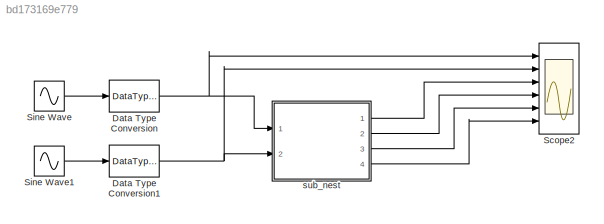
MODEL slx_bd173169e779
KIND model
CONFIG AbsTol = auto
CONFIG FixedStep = auto
CONFIG MaxStep = auto
CONFIG MinStep = auto
CONFIG RelTol = 1e-3
CONFIG SampleTimeConstraint = Unconstrained
CONFIG Solver = FixedStepDiscrete
CONFIG SolverMode = SingleTasking
CONFIG SolverName = FixedStepDiscrete
CONFIG StartTime = 0.0
CONFIG StopTime = 2/10
BLOCK [DataTypeConversion] Data Type Conversion
  OutDataTypeStr = fixdt(1,4,2)
  RndMeth = Floor
  SaturateOnIntegerOverflow = off
BLOCK [DataTypeConversion] Data Type Conversion1
  OutDataTypeStr = fixdt(1,4,2)
  RndMeth = Floor
  SaturateOnIntegerOverflow = off
BLOCK [Scope] Scope2
  NumInputPorts = 6
  Ports = [6]
  ScopeSpecificationString = Simulink.scopes.TimeScopeBlockCfg('CurrentConfiguration', extmgr.ConfigurationSet(extmgr.Configuration('Core','General UI',true),extmgr.Configuration('Core','Source UI',true),extmgr.Configuration('Sources','WiredSimulink',true,'DataLoggingVariableName','ScopeData1','DataLoggingSaveFormat','StructureWithTime','DataLoggingDecimation','1','DataLoggingDecimateData',true),extmgr.Configuration('Visuals'...<+6515ch>
BLOCK [Sin] Sine Wave
  Amplitude = 4
  Frequency = 2*pi*10
  Ports = [0, 1]
  SampleTime = 1/100
BLOCK [Sin] Sine Wave1
  Amplitude = 4
  Frequency = 2*pi*20
  Ports = [0, 1]
  SampleTime = 1/100
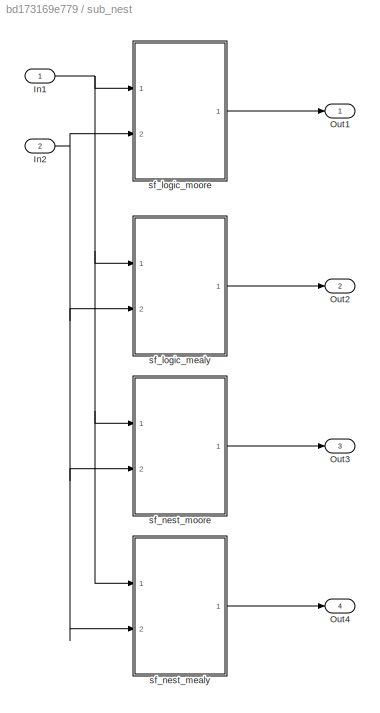
BLOCK [SubSystem] sub_nest
  Ports = [2, 4]
  RequestExecContextInheritance = off
  Variant = off
BLOCK [Inport] sub_nest/In1
  IconDisplay = Port number
BLOCK [Inport] sub_nest/In2
  IconDisplay = Port number
  Port = 2
BLOCK [Outport] sub_nest/Out1
  IconDisplay = Port number
BLOCK [Outport] sub_nest/Out2
  IconDisplay = Port number
  Port = 2
BLOCK [Outport] sub_nest/Out3
  IconDisplay = Port number
  Port = 3
BLOCK [Outport] sub_nest/Out4
  IconDisplay = Port number
  Port = 4
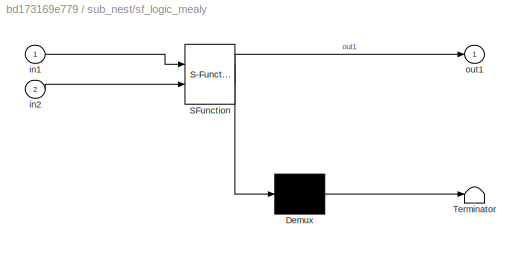
BLOCK [SubSystem] sub_nest/sf_logic_mealy
  ErrorFcn = Stateflow.Translate.translate
  PermitHierarchicalResolution = ExplicitOnly
  Ports = [2, 1]
  RequestExecContextInheritance = off
  SFBlockType = Chart
  TreatAsAtomicUnit = on
  Variant = off
BLOCK [Demux] sub_nest/sf_logic_mealy/ Demux 
  Outputs = 1
  Ports = [1, 1]
BLOCK [S-Function] sub_nest/sf_logic_mealy/ SFunction 
  EnableBusSupport = on
  FunctionName = sf_sfun
  PortCounts = [2 2]
  Ports = [2, 2]
  SFunctionDeploymentMode = off
  Tag = Stateflow S-Function sf_nest 3
BLOCK [Terminator] sub_nest/sf_logic_mealy/ Terminator 
BLOCK [Inport] sub_nest/sf_logic_mealy/in1
  IconDisplay = Port number
BLOCK [Inport] sub_nest/sf_logic_mealy/in2
  IconDisplay = Port number
  Port = 2
BLOCK [Outport] sub_nest/sf_logic_mealy/out1
  IconDisplay = Port number
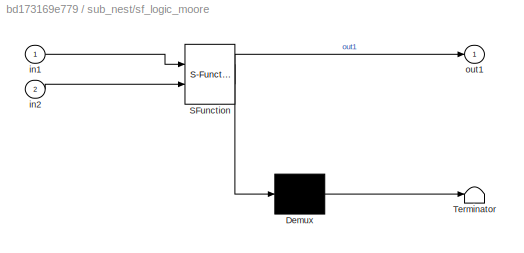
BLOCK [SubSystem] sub_nest/sf_logic_moore
  ErrorFcn = Stateflow.Translate.translate
  PermitHierarchicalResolution = ExplicitOnly
  Ports = [2, 1]
  RequestExecContextInheritance = off
  SFBlockType = Chart
  TreatAsAtomicUnit = on
  Variant = off
BLOCK [Demux] sub_nest/sf_logic_moore/ Demux 
  Outputs = 1
  Ports = [1, 1]
BLOCK [S-Function] sub_nest/sf_logic_moore/ SFunction 
  EnableBusSupport = on
  FunctionName = sf_sfun
  PortCounts = [2 2]
  Ports = [2, 2]
  SFunctionDeploymentMode = off
  Tag = Stateflow S-Function sf_nest 1
BLOCK [Terminator] sub_nest/sf_logic_moore/ Terminator 
BLOCK [Inport] sub_nest/sf_logic_moore/in1
  IconDisplay = Port number
BLOCK [Inport] sub_nest/sf_logic_moore/in2
  IconDisplay = Port number
  Port = 2
BLOCK [Outport] sub_nest/sf_logic_moore/out1
  IconDisplay = Port number
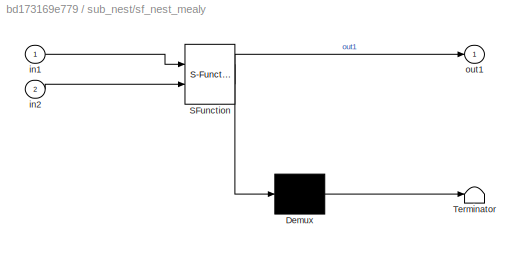
BLOCK [SubSystem] sub_nest/sf_nest_mealy
  ErrorFcn = Stateflow.Translate.translate
  PermitHierarchicalResolution = ExplicitOnly
  Ports = [2, 1]
  RequestExecContextInheritance = off
  SFBlockType = Chart
  TreatAsAtomicUnit = on
  Variant = off
BLOCK [Demux] sub_nest/sf_nest_mealy/ Demux 
  Outputs = 1
  Ports = [1, 1]
BLOCK [S-Function] sub_nest/sf_nest_mealy/ SFunction 
  EnableBusSupport = on
  FunctionName = sf_sfun
  PortCounts = [2 2]
  Ports = [2, 2]
  SFunctionDeploymentMode = off
  Tag = Stateflow S-Function sf_nest 4
BLOCK [Terminator] sub_nest/sf_nest_mealy/ Terminator 
BLOCK [Inport] sub_nest/sf_nest_mealy/in1
  IconDisplay = Port number
BLOCK [Inport] sub_nest/sf_nest_mealy/in2
  IconDisplay = Port number
  Port = 2
BLOCK [Outport] sub_nest/sf_nest_mealy/out1
  IconDisplay = Port number
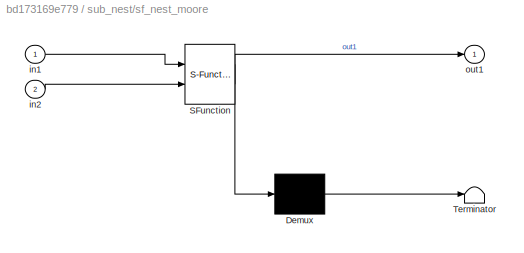
BLOCK [SubSystem] sub_nest/sf_nest_moore
  ErrorFcn = Stateflow.Translate.translate
  PermitHierarchicalResolution = ExplicitOnly
  Ports = [2, 1]
  RequestExecContextInheritance = off
  SFBlockType = Chart
  TreatAsAtomicUnit = on
  Variant = off
BLOCK [Demux] sub_nest/sf_nest_moore/ Demux 
  Outputs = 1
  Ports = [1, 1]
BLOCK [S-Function] sub_nest/sf_nest_moore/ SFunction 
  EnableBusSupport = on
  FunctionName = sf_sfun
  PortCounts = [2 2]
  Ports = [2, 2]
  SFunctionDeploymentMode = off
  Tag = Stateflow S-Function sf_nest 2
BLOCK [Terminator] sub_nest/sf_nest_moore/ Terminator 
BLOCK [Inport] sub_nest/sf_nest_moore/in1
  IconDisplay = Port number
BLOCK [Inport] sub_nest/sf_nest_moore/in2
  IconDisplay = Port number
  Port = 2
BLOCK [Outport] sub_nest/sf_nest_moore/out1
  IconDisplay = Port number
NET Data Type Conversion1:1 -> Scope2:2, sub_nest:2
NET Data Type Conversion:1 -> Scope2:1, sub_nest:1
LINE Sine Wave1:1 -> Data Type Conversion1:1
LINE Sine Wave:1 -> Data Type Conversion:1
NET sub_nest/In1:1 -> sub_nest/sf_logic_mealy:1, sub_nest/sf_logic_moore:1, sub_nest/sf_nest_mealy:1, sub_nest/sf_nest_moore:1
NET sub_nest/In2:1 -> sub_nest/sf_logic_mealy:2, sub_nest/sf_logic_moore:2, sub_nest/sf_nest_mealy:2, sub_nest/sf_nest_moore:2
LINE sub_nest/sf_logic_mealy:1 -> sub_nest/Out2:1
LINE sub_nest/sf_logic_moore:1 -> sub_nest/Out1:1
LINE sub_nest/sf_nest_mealy:1 -> sub_nest/Out4:1
LINE sub_nest/sf_nest_moore:1 -> sub_nest/Out3:1
LINE sub_nest:1 -> Scope2:3
LINE sub_nest:2 -> Scope2:4
LINE sub_nest:3 -> Scope2:5
LINE sub_nest:4 -> Scope2:6
note: NET lines group one-source signal fan-out (src -> all destinations, sorted); 1:1 wires keep LINE
CHART sub_nest/sf_logic_moore states=2 transitions=5
  STATE_LABEL 'Init/\nout1 = 2;'
  STATE_LABEL 'On1/\nout1 = 1;'
CHART sub_nest/sf_nest_moore states=2 transitions=9
  STATE_LABEL 'Init/\nout1 = 2;'
  STATE_LABEL 'On1/\nout1 = 1;'
CHART sub_nest/sf_logic_mealy states=2 transitions=5
  STATE_LABEL 'Init/'
  STATE_LABEL 'On1/'
CHART sub_nest/sf_nest_mealy states=2 transitions=9
  STATE_LABEL 'Init/'
  STATE_LABEL 'On1/'
